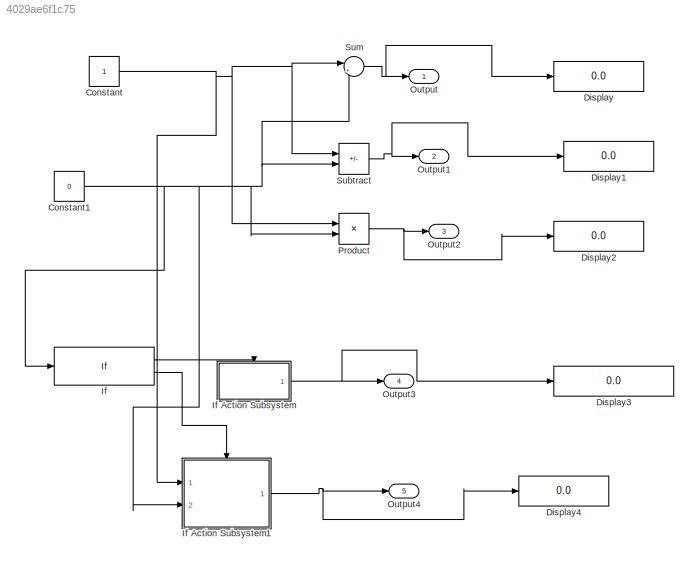
MODEL slx_4029ae6f1c75
KIND model
CONFIG AbsTol = auto
CONFIG EnableMultiTasking = off
CONFIG FixedStep = auto
CONFIG MaxStep = auto
CONFIG MinStep = auto
CONFIG RelTol = 1e-3
CONFIG SampleTimeConstraint = Unconstrained
CONFIG SolverName = VariableStepAuto
CONFIG StartTime = 0.0
CONFIG StopTime = 10.0
BLOCK [Constant] Constant
BLOCK [Constant] Constant1
  Value = 0
BLOCK [Display] Display
  Decimation = 1
  Ports = [1]
BLOCK [Display] Display1
  Decimation = 1
  Ports = [1]
BLOCK [Display] Display2
  Decimation = 1
  Ports = [1]
BLOCK [Display] Display3
  Decimation = 1
  Ports = [1]
BLOCK [Display] Display4
  Decimation = 1
  Ports = [1]
BLOCK [If] If
  IfExpression = u1 == 0
  Ports = [1, 2]
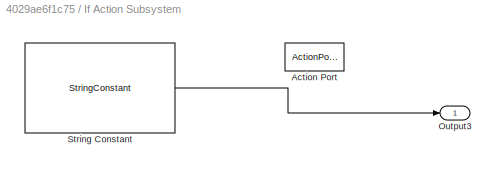
BLOCK [SubSystem] If Action Subsystem
  Ports = [0, 1, 0, 0, 0, 0, 0, 1]
  RequestExecContextInheritance = off
  TreatAsAtomicUnit = on
BLOCK [ActionPort] If Action Subsystem/Action Port
  ActionPortLabel = if(u1 == 0)
BLOCK [Outport] If Action Subsystem/Output3
BLOCK [StringConstant] If Action Subsystem/String Constant
  String = "Error Divison By Zero"
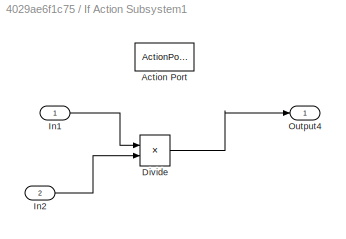
BLOCK [SubSystem] If Action Subsystem1
  Ports = [2, 1, 0, 0, 0, 0, 0, 1]
  RequestExecContextInheritance = off
  TreatAsAtomicUnit = on
BLOCK [ActionPort] If Action Subsystem1/Action Port
  ActionPortLabel = else
BLOCK [Product] If Action Subsystem1/Divide
  Inputs = */
  Ports = [2, 1]
BLOCK [Inport] If Action Subsystem1/In1
BLOCK [Inport] If Action Subsystem1/In2
  Port = 2
BLOCK [Outport] If Action Subsystem1/Output4
BLOCK [Outport] Output
BLOCK [Outport] Output1
  Port = 2
BLOCK [Outport] Output2
  Port = 3
BLOCK [Outport] Output3
  Port = 4
BLOCK [Outport] Output4
  Port = 5
BLOCK [Product] Product
  Ports = [2, 1]
BLOCK [Sum] Subtract
  IconShape = rectangular
  Inputs = +-
  Ports = [2, 1]
BLOCK [Sum] Sum
  Inputs = |++
  Ports = [2, 1]
NET Constant1:1 -> If Action Subsystem1:2, If:1, Product:2, Subtract:2, Sum:2
NET Constant:1 -> If Action Subsystem1:1, Product:1, Subtract:1, Sum:1
LINE If Action Subsystem/String Constant:1 -> If Action Subsystem/Output3:1
LINE If Action Subsystem1/Divide:1 -> If Action Subsystem1/Output4:1
LINE If Action Subsystem1/In1:1 -> If Action Subsystem1/Divide:1
LINE If Action Subsystem1/In2:1 -> If Action Subsystem1/Divide:2
NET If Action Subsystem1:1 -> Display4:1, Output4:1
NET If Action Subsystem:1 -> Display3:1, Output3:1
LINE If:1 -> If Action Subsystem:ifaction
LINE If:2 -> If Action Subsystem1:ifaction
NET Product:1 -> Display2:1, Output2:1
NET Subtract:1 -> Display1:1, Output1:1
NET Sum:1 -> Display:1, Output:1
note: NET lines group one-source signal fan-out (src -> all destinations, sorted); 1:1 wires keep LINE
